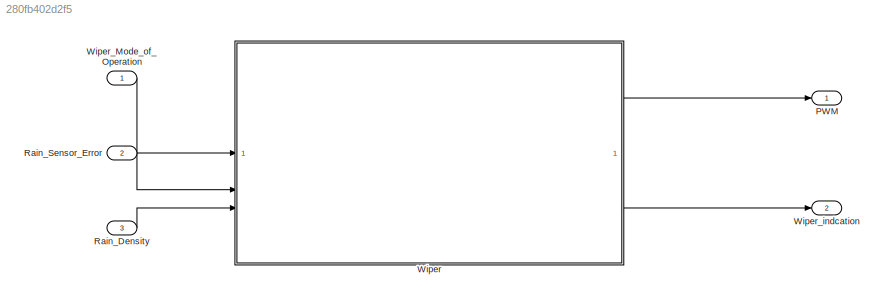
MODEL slx_280fb402d2f5
KIND model
CONFIG AbsTol = auto
CONFIG EnableMultiTasking = on
CONFIG FixedStep = 0.01
CONFIG MaxStep = auto
CONFIG MinStep = auto
CONFIG RelTol = 1e-3
CONFIG SampleTimeConstraint = Unconstrained
CONFIG SolverName = FixedStepDiscrete
CONFIG StartTime = 0.0
CONFIG StopTime = 10.0
BLOCK [Outport] PWM
BLOCK [Inport] Rain_Density
  Port = 3
BLOCK [Inport] Rain_Sensor_Error
  Port = 2
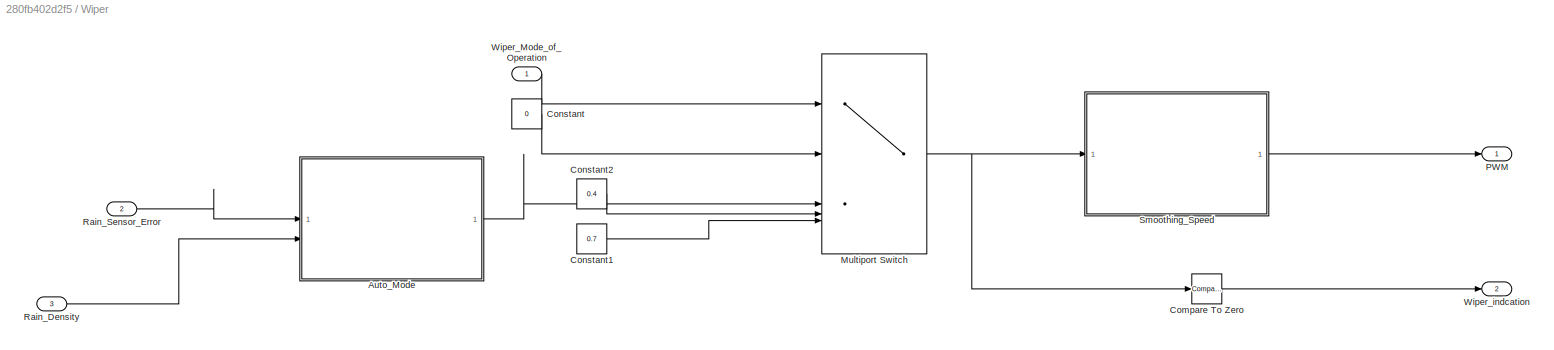
BLOCK [SubSystem] Wiper
  TreatAsAtomicUnit = on
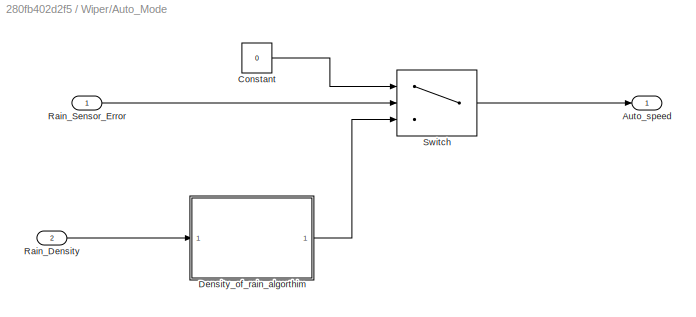
BLOCK [SubSystem] Wiper/Auto_Mode
BLOCK [Outport] Wiper/Auto_Mode/Auto_speed
BLOCK [Constant] Wiper/Auto_Mode/Constant
  Value = 0
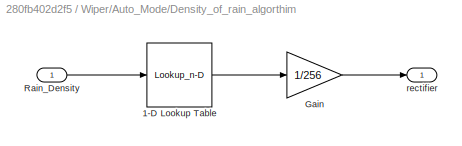
BLOCK [SubSystem] Wiper/Auto_Mode/Density_of_rain_algorthim
BLOCK [Lookup_n-D] Wiper/Auto_Mode/Density_of_rain_algorthim/1-D Lookup Table
  BreakpointsForDimension1 = [0 256 512 768 1023]
  InputPortMap = u0
  InternalRulePriority = Speed
  NumberOfTableDimensions = 1
  RndMeth = Simplest
  Table = [0 64 128 192 256]
BLOCK [Gain] Wiper/Auto_Mode/Density_of_rain_algorthim/Gain
  Gain = 1/256
BLOCK [Inport] Wiper/Auto_Mode/Density_of_rain_algorthim/Rain_Density
BLOCK [Outport] Wiper/Auto_Mode/Density_of_rain_algorthim/rectifier
BLOCK [Inport] Wiper/Auto_Mode/Rain_Density
  Port = 2
BLOCK [Inport] Wiper/Auto_Mode/Rain_Sensor_Error
BLOCK [Switch] Wiper/Auto_Mode/Switch
  Criteria = u2 ~= 0
  InputSameDT = off
  SaturateOnIntegerOverflow = off
BLOCK [Reference] Wiper/Compare To Zero  REF=simulink/Logic and Bit
Operations/Compare
To Zero
  SourceBlock = simulink/Logic and Bit\nOperations/Compare\nTo Zero
  SourceType = Compare To Zero
BLOCK [Constant] Wiper/Constant
  Value = 0
BLOCK [Constant] Wiper/Constant1
  Value = 0.7
BLOCK [Constant] Wiper/Constant2
  Value = 0.4
BLOCK [MultiPortSwitch] Wiper/Multiport Switch
  DataPortIndices = {Operation_Mode.OFF,Operation_Mode.Auto,Operation_Mode.Low_Speed,Operation_Mode.High_Speed}
  DataPortOrder = Specify indices
  DiagnosticForDefault = None
  InputSameDT = off
  SaturateOnIntegerOverflow = off
BLOCK [Outport] Wiper/PWM
BLOCK [Inport] Wiper/Rain_Density
  Port = 3
BLOCK [Inport] Wiper/Rain_Sensor_Error
  Port = 2
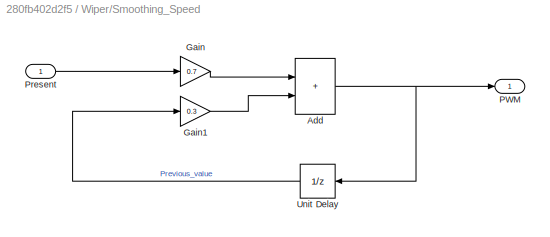
BLOCK [SubSystem] Wiper/Smoothing_Speed
BLOCK [Sum] Wiper/Smoothing_Speed/Add
  IconShape = rectangular
BLOCK [Gain] Wiper/Smoothing_Speed/Gain
  Gain = 0.7
BLOCK [Gain] Wiper/Smoothing_Speed/Gain1
  Gain = 0.3
BLOCK [Outport] Wiper/Smoothing_Speed/PWM
BLOCK [Inport] Wiper/Smoothing_Speed/Present
BLOCK [UnitDelay] Wiper/Smoothing_Speed/Unit Delay
  HasFrameUpgradeWarning = on
  NameLocation = top
  SampleTime = -1
BLOCK [Inport] Wiper/Wiper_Mode_of_Operation
BLOCK [Outport] Wiper/Wiper_indcation
  Port = 2
BLOCK [Inport] Wiper_Mode_of_Operation
  OutDataTypeStr = Enum: Operation_Mode
BLOCK [Outport] Wiper_indcation
  Port = 2
LINE Rain_Density:1 -> Wiper:3
LINE Rain_Sensor_Error:1 -> Wiper:2
LINE Wiper/Auto_Mode/Constant:1 -> Wiper/Auto_Mode/Switch:1
LINE Wiper/Auto_Mode/Density_of_rain_algorthim/1-D Lookup Table:1 -> Wiper/Auto_Mode/Density_of_rain_algorthim/Gain:1
LINE Wiper/Auto_Mode/Density_of_rain_algorthim/Gain:1 -> Wiper/Auto_Mode/Density_of_rain_algorthim/rectifier:1
LINE Wiper/Auto_Mode/Density_of_rain_algorthim/Rain_Density:1 -> Wiper/Auto_Mode/Density_of_rain_algorthim/1-D Lookup Table:1
LINE Wiper/Auto_Mode/Density_of_rain_algorthim:1 -> Wiper/Auto_Mode/Switch:3
LINE Wiper/Auto_Mode/Rain_Density:1 -> Wiper/Auto_Mode/Density_of_rain_algorthim:1
LINE Wiper/Auto_Mode/Rain_Sensor_Error:1 -> Wiper/Auto_Mode/Switch:2
LINE Wiper/Auto_Mode/Switch:1 -> Wiper/Auto_Mode/Auto_speed:1
LINE Wiper/Auto_Mode:1 -> Wiper/Multiport Switch:3
LINE Wiper/Compare To Zero:1 -> Wiper/Wiper_indcation:1
LINE Wiper/Constant1:1 -> Wiper/Multiport Switch:5
LINE Wiper/Constant2:1 -> Wiper/Multiport Switch:4
LINE Wiper/Constant:1 -> Wiper/Multiport Switch:2
NET Wiper/Multiport Switch:1 -> Wiper/Compare To Zero:1, Wiper/Smoothing_Speed:1
LINE Wiper/Rain_Density:1 -> Wiper/Auto_Mode:2
LINE Wiper/Rain_Sensor_Error:1 -> Wiper/Auto_Mode:1
NET Wiper/Smoothing_Speed/Add:1 -> Wiper/Smoothing_Speed/PWM:1, Wiper/Smoothing_Speed/Unit Delay:1
LINE Wiper/Smoothing_Speed/Gain1:1 -> Wiper/Smoothing_Speed/Add:2
LINE Wiper/Smoothing_Speed/Gain:1 -> Wiper/Smoothing_Speed/Add:1
LINE Wiper/Smoothing_Speed/Present:1 -> Wiper/Smoothing_Speed/Gain:1
LINE Wiper/Smoothing_Speed/Unit Delay:1 -> Wiper/Smoothing_Speed/Gain1:1
LINE Wiper/Smoothing_Speed:1 -> Wiper/PWM:1
LINE Wiper/Wiper_Mode_of_Operation:1 -> Wiper/Multiport Switch:1
LINE Wiper:1 -> PWM:1
LINE Wiper:2 -> Wiper_indcation:1
LINE Wiper_Mode_of_Operation:1 -> Wiper:1
note: NET lines group one-source signal fan-out (src -> all destinations, sorted); 1:1 wires keep LINE
